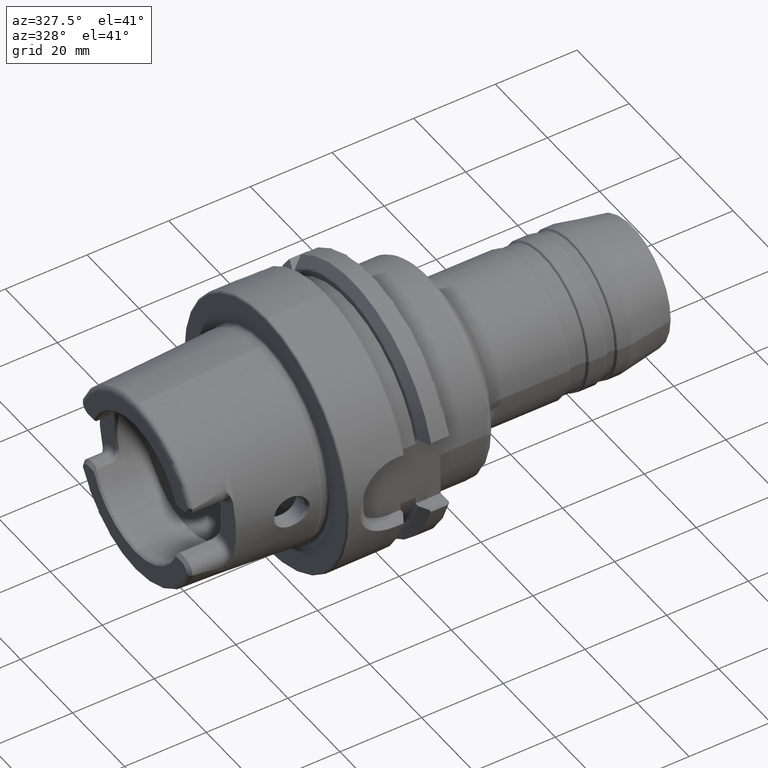
[diagram: clean part render]
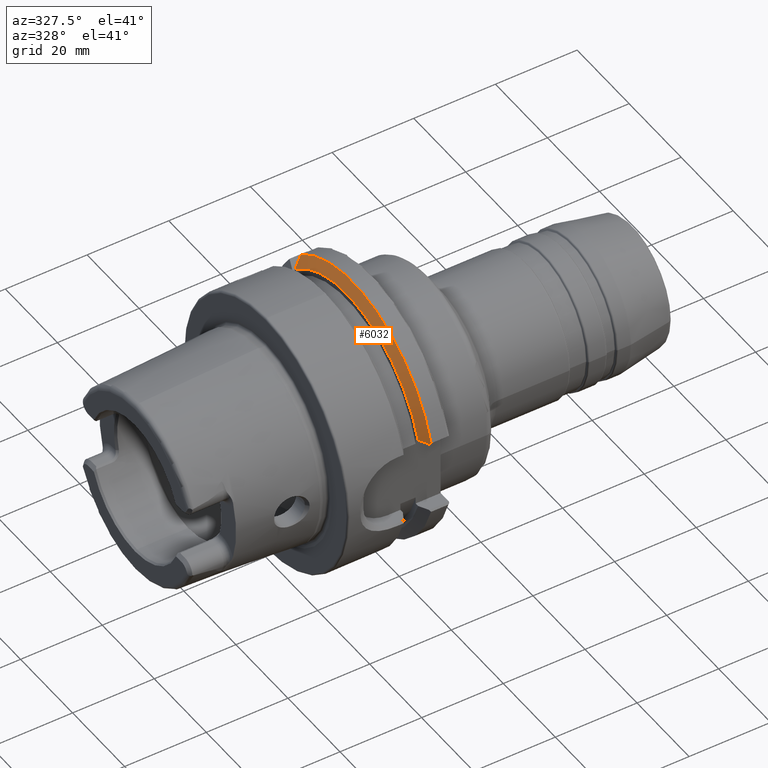
[diagram: same view with one face highlighted and labeled with its STEP entity id]
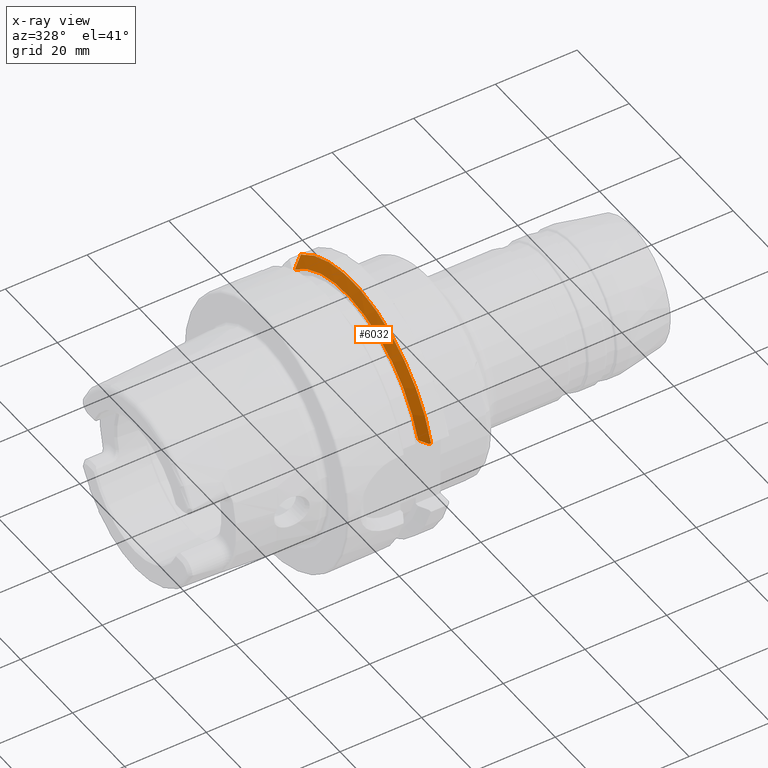
[diagram: x-ray of the same camera — body ghosted, the highlighted face saturated]
A machine part, auxiliary view. The second image highlights one B-rep face of the part: STEP entity #6032.
The next image is the same camera in x-ray: the body ghosted, the highlighted face saturated — about 0% of this face is hidden behind the body in this view.
In plain terms, the highlighted conical surface has half-angle 60 deg.
Its self-contained STEP definition (entity closure, byte-faithful):
#2236=CARTESIAN_POINT('',(2.137749905409E1,-3.007314630073E1,9.373146300730E0));
#2237=CARTESIAN_POINT('',(2.133222651769E1,-3.001052821082E1,9.310528210818E0));
#2238=CARTESIAN_POINT('',(2.124208332148E1,-2.988571910367E1,9.185719103672E0));
#2239=CARTESIAN_POINT('',(2.115274415399E1,-2.976176404209E1,9.061764042087E0));
#2240=CARTESIAN_POINT('',(2.110827564058E1,-2.97E1,9.E0));
#2242=CARTESIAN_POINT('',(1.9875E1,-2.746035349595E1,9.E0));
#2243=CARTESIAN_POINT('',(2.000815730744E1,-2.770305988737E1,9.E0));
#2244=CARTESIAN_POINT('',(2.027705920850E1,-2.819256428174E1,9.E0));
#2245=CARTESIAN_POINT('',(2.068812000744E1,-2.893903747045E1,9.E0));
#2246=CARTESIAN_POINT('',(2.096736261765E1,-2.944497148241E1,9.E0));
#2247=CARTESIAN_POINT('',(2.110827564058E1,-2.97E1,9.E0));
#2249=CARTESIAN_POINT('',(1.9875E1,0.E0,0.E0));
#2250=DIRECTION('',(-1.E0,0.E0,0.E0));
#2251=DIRECTION('',(0.E0,-9.502643112990E-1,3.114445996827E-1));
#2252=AXIS2_PLACEMENT_3D('',#2249,#2250,#2251);
#2254=CARTESIAN_POINT('',(1.9875E1,2.E1,2.085835597842E1));
#2255=CARTESIAN_POINT('',(2.002730864105E1,2.E1,2.122383865787E1));
#2256=CARTESIAN_POINT('',(2.034159396585E1,2.E1,2.196878900649E1));
#2257=CARTESIAN_POINT('',(2.084187084513E1,2.E1,2.312708230139E1));
#2258=CARTESIAN_POINT('',(2.119561267371E1,2.E1,2.392841370879E1));
#2259=CARTESIAN_POINT('',(2.137749905409E1,2.E1,2.433618704728E1));
#2261=CARTESIAN_POINT('',(2.137749905409E1,0.E0,0.E0));
#2262=DIRECTION('',(1.E0,0.E0,0.E0));
#2263=DIRECTION('',(0.E0,6.349206349206E-1,7.725773665802E-1));
#2264=AXIS2_PLACEMENT_3D('',#2261,#2262,#2263);
#2934=CARTESIAN_POINT('',(1.9875E1,-2.746035349595E1,9.E0));
#2935=VERTEX_POINT('',#2934);
#2956=CARTESIAN_POINT('',(1.9875E1,2.E1,2.085835597842E1));
#2958=VERTEX_POINT('',#2956);
#2962=VERTEX_POINT('',#2259);
#3134=VERTEX_POINT('',#2236);
#3135=VERTEX_POINT('',#2240);
#6018=CARTESIAN_POINT('',(2.062624952704E1,0.E0,0.E0));
#6019=DIRECTION('',(1.E0,0.E0,0.E0));
#6020=DIRECTION('',(0.E0,0.E0,1.E0));
#6021=AXIS2_PLACEMENT_3D('',#6018,#6019,#6020);
#6022=CONICAL_SURFACE('',#6021,3.019879765E1,6.E1);
#6023=ORIENTED_EDGE('',*,*,#5768,.T.);
#6024=ORIENTED_EDGE('',*,*,#5802,.F.);
#6026=ORIENTED_EDGE('',*,*,#6025,.T.);
#6028=ORIENTED_EDGE('',*,*,#6027,.T.);
#6029=ORIENTED_EDGE('',*,*,#4351,.T.);
#6030=EDGE_LOOP('',(#6023,#6024,#6026,#6028,#6029));
#6031=FACE_OUTER_BOUND('',#6030,.F.);
#6032=ADVANCED_FACE('',(#6031),#6022,.T.);
#2241=B_SPLINE_CURVE_WITH_KNOTS('',3,(#2236,#2237,#2238,#2239,#2240),
.UNSPECIFIED.,.F.,.F.,(4,1,4),(0.E0,5.E-1,1.E0),.UNSPECIFIED.);
#2248=B_SPLINE_CURVE_WITH_KNOTS('',3,(#2242,#2243,#2244,#2245,#2246,#2247),
.UNSPECIFIED.,.F.,.F.,(4,1,1,4),(0.E0,3.333333333333E-1,6.666666666667E-1,1.E0),
.UNSPECIFIED.);
#2253=CIRCLE('',#2252,2.88975953E1);
#2260=B_SPLINE_CURVE_WITH_KNOTS('',3,(#2254,#2255,#2256,#2257,#2258,#2259),
.UNSPECIFIED.,.F.,.F.,(4,1,1,4),(0.E0,3.333333333333E-1,6.666666666667E-1,1.E0),
.UNSPECIFIED.);
#2265=CIRCLE('',#2264,3.15E1);
#4351=EDGE_CURVE('',#2962,#3134,#2265,.T.);
#5768=EDGE_CURVE('',#3134,#3135,#2241,.T.);
#5802=EDGE_CURVE('',#2935,#3135,#2248,.T.);
#6025=EDGE_CURVE('',#2935,#2958,#2253,.T.);
#6027=EDGE_CURVE('',#2958,#2962,#2260,.T.);